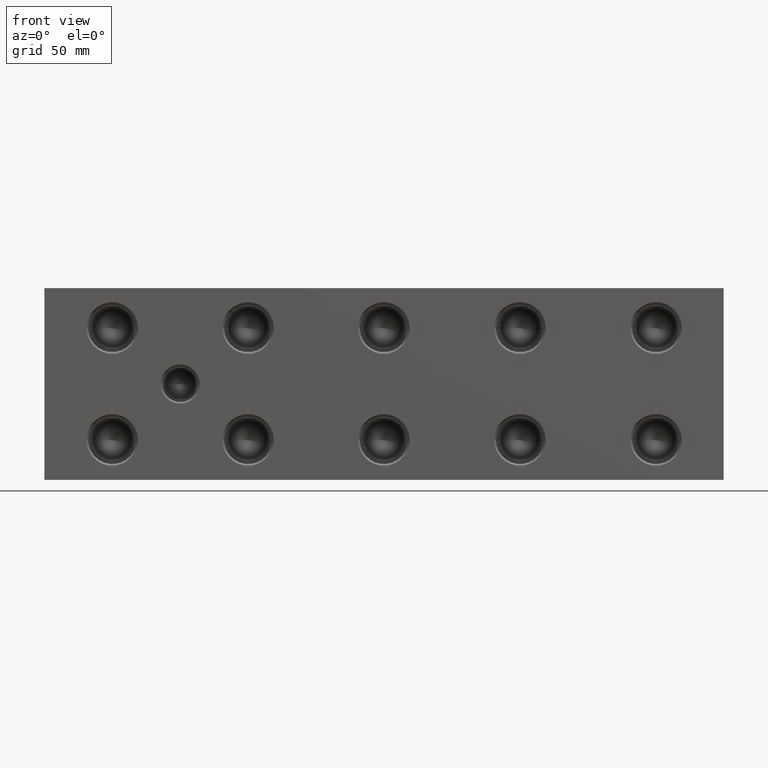
[diagram: clean part render]
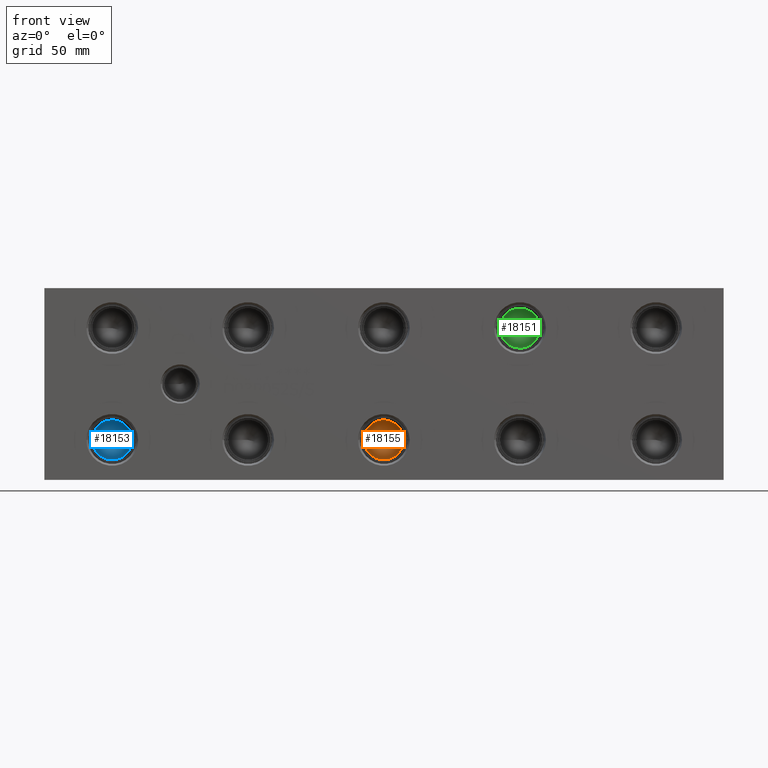
[diagram: same view with three faces highlighted in distinct colors, each labeled with its STEP entity id]
A machine part, front view with three faces highlighted in distinct colors.
Their STEP definitions:

[orange] entity #18155 — the highlighted conical surface has half-angle 60 deg.
#63=CONICAL_SURFACE('',#19161,3.96875,1.0471975511966);
#539=CIRCLE('',#19162,7.9375);
#540=CIRCLE('',#19163,7.9375);
#2473=FACE_OUTER_BOUND('',#3533,.T.);
#3533=EDGE_LOOP('',(#15315,#15316,#15317,#15318));
#5179=LINE('',#30996,#6709);
#6709=VECTOR('',#22648,3.96875);
#8284=VERTEX_POINT('',#30992);
#8285=VERTEX_POINT('',#30993);
#8286=VERTEX_POINT('',#30995);
#10730=EDGE_CURVE('',#8284,#8285,#539,.T.);
#10731=EDGE_CURVE('',#8285,#8286,#5179,.T.);
#10732=EDGE_CURVE('',#8285,#8284,#540,.T.);
#15315=ORIENTED_EDGE('',*,*,#10730,.T.);
#15316=ORIENTED_EDGE('',*,*,#10731,.T.);
#15317=ORIENTED_EDGE('',*,*,#10731,.F.);
#15318=ORIENTED_EDGE('',*,*,#10732,.T.);
#18155=ADVANCED_FACE('',(#2473),#63,.F.);
#19161=AXIS2_PLACEMENT_3D('',#30991,#22644,#22645);
#19162=AXIS2_PLACEMENT_3D('',#30994,#22646,#22647);
#19163=AXIS2_PLACEMENT_3D('',#30997,#22649,#22650);
#22644=DIRECTION('center_axis',(0.,-1.,0.));
#22645=DIRECTION('ref_axis',(1.,0.,0.));
#22646=DIRECTION('center_axis',(0.,-1.,0.));
#22647=DIRECTION('ref_axis',(1.,0.,0.));
#22648=DIRECTION('',(0.866025403784439,0.5,1.06057523872491E-16));
#22649=DIRECTION('center_axis',(0.,-1.,0.));
#22650=DIRECTION('ref_axis',(1.,0.,0.));
#30991=CARTESIAN_POINT('Origin',(134.9248,25.5239588808463,15.875));
#30992=CARTESIAN_POINT('',(142.8623,23.2326,15.875));
#30993=CARTESIAN_POINT('',(126.9873,23.2326,15.875));
#30994=CARTESIAN_POINT('Origin',(134.9248,23.2326,15.875));
#30995=CARTESIAN_POINT('',(134.9248,27.8153177616927,15.875));
#30996=CARTESIAN_POINT('',(130.95605,25.5239588808463,15.875));
#30997=CARTESIAN_POINT('Origin',(134.9248,23.2326,15.875));

[blue] entity #18153 — the highlighted conical surface has half-angle 60 deg.
#62=CONICAL_SURFACE('',#19156,3.96875,1.0471975511966);
#536=CIRCLE('',#19157,7.9375);
#537=CIRCLE('',#19158,7.9375);
#2471=FACE_OUTER_BOUND('',#3531,.T.);
#3531=EDGE_LOOP('',(#15306,#15307,#15308,#15309));
#5177=LINE('',#30985,#6707);
#6707=VECTOR('',#22636,3.96875);
#8280=VERTEX_POINT('',#30981);
#8281=VERTEX_POINT('',#30982);
#8282=VERTEX_POINT('',#30984);
#10725=EDGE_CURVE('',#8280,#8281,#536,.T.);
#10726=EDGE_CURVE('',#8281,#8282,#5177,.T.);
#10727=EDGE_CURVE('',#8281,#8280,#537,.T.);
#15306=ORIENTED_EDGE('',*,*,#10725,.T.);
#15307=ORIENTED_EDGE('',*,*,#10726,.T.);
#15308=ORIENTED_EDGE('',*,*,#10726,.F.);
#15309=ORIENTED_EDGE('',*,*,#10727,.T.);
#18153=ADVANCED_FACE('',(#2471),#62,.F.);
#19156=AXIS2_PLACEMENT_3D('',#30980,#22632,#22633);
#19157=AXIS2_PLACEMENT_3D('',#30983,#22634,#22635);
#19158=AXIS2_PLACEMENT_3D('',#30986,#22637,#22638);
#22632=DIRECTION('center_axis',(0.,-1.,0.));
#22633=DIRECTION('ref_axis',(1.,0.,0.));
#22634=DIRECTION('center_axis',(0.,-1.,0.));
#22635=DIRECTION('ref_axis',(1.,0.,0.));
#22636=DIRECTION('',(0.866025403784439,0.5,1.06057523872491E-16));
#22637=DIRECTION('center_axis',(0.,-1.,0.));
#22638=DIRECTION('ref_axis',(1.,0.,0.));
#30980=CARTESIAN_POINT('Origin',(26.9748,25.5239588808463,15.875));
#30981=CARTESIAN_POINT('',(34.9123,23.2326,15.875));
#30982=CARTESIAN_POINT('',(19.0373,23.2326,15.875));
#30983=CARTESIAN_POINT('Origin',(26.9748,23.2326,15.875));
#30984=CARTESIAN_POINT('',(26.9748,27.8153177616927,15.875));
#30985=CARTESIAN_POINT('',(23.00605,25.5239588808463,15.875));
#30986=CARTESIAN_POINT('Origin',(26.9748,23.2326,15.875));

[green] entity #18151 — the highlighted conical surface has half-angle 60 deg.
#61=CONICAL_SURFACE('',#19151,3.96875,1.0471975511966);
#533=CIRCLE('',#19152,7.9375);
#534=CIRCLE('',#19153,7.9375);
#2469=FACE_OUTER_BOUND('',#3529,.T.);
#3529=EDGE_LOOP('',(#15297,#15298,#15299,#15300));
#5175=LINE('',#30974,#6705);
#6705=VECTOR('',#22624,3.96875);
#8276=VERTEX_POINT('',#30970);
#8277=VERTEX_POINT('',#30971);
#8278=VERTEX_POINT('',#30973);
#10720=EDGE_CURVE('',#8276,#8277,#533,.T.);
#10721=EDGE_CURVE('',#8277,#8278,#5175,.T.);
#10722=EDGE_CURVE('',#8277,#8276,#534,.T.);
#15297=ORIENTED_EDGE('',*,*,#10720,.T.);
#15298=ORIENTED_EDGE('',*,*,#10721,.T.);
#15299=ORIENTED_EDGE('',*,*,#10721,.F.);
#15300=ORIENTED_EDGE('',*,*,#10722,.T.);
#18151=ADVANCED_FACE('',(#2469),#61,.F.);
#19151=AXIS2_PLACEMENT_3D('',#30969,#22620,#22621);
#19152=AXIS2_PLACEMENT_3D('',#30972,#22622,#22623);
#19153=AXIS2_PLACEMENT_3D('',#30975,#22625,#22626);
#22620=DIRECTION('center_axis',(0.,-1.,0.));
#22621=DIRECTION('ref_axis',(1.,0.,0.));
#22622=DIRECTION('center_axis',(0.,-1.,0.));
#22623=DIRECTION('ref_axis',(1.,0.,0.));
#22624=DIRECTION('',(0.866025403784439,0.5,1.06057523872491E-16));
#22625=DIRECTION('center_axis',(0.,-1.,0.));
#22626=DIRECTION('ref_axis',(1.,0.,0.));
#30969=CARTESIAN_POINT('Origin',(189.0268,25.5239588808463,60.325));
#30970=CARTESIAN_POINT('',(196.9643,23.2326,60.325));
#30971=CARTESIAN_POINT('',(181.0893,23.2326,60.325));
#30972=CARTESIAN_POINT('Origin',(189.0268,23.2326,60.325));
#30973=CARTESIAN_POINT('',(189.0268,27.8153177616927,60.325));
#30974=CARTESIAN_POINT('',(185.05805,25.5239588808463,60.325));
#30975=CARTESIAN_POINT('Origin',(189.0268,23.2326,60.325));